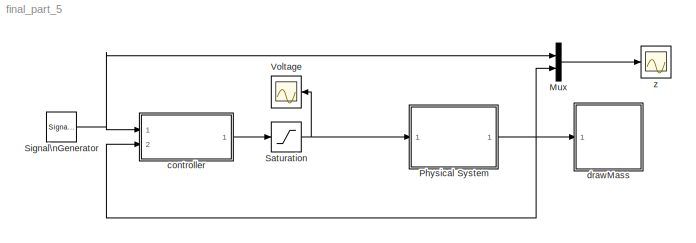
MODEL final_part_5
KIND model
BLOCK [Mux] Mux
  DisplayOption = bar
  Inputs = 2
  Ports = [2, 1]
  SID = 43
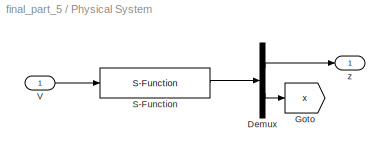
BLOCK [SubSystem] Physical System
  Ports = [1, 1]
  RequestExecContextInheritance = off
  SID = 73
BLOCK [Demux] Physical System/Demux
  DisplayOption = bar
  Outputs = [1;3]
  Ports = [1, 2]
  SID = 75
BLOCK [Goto] Physical System/Goto
  GotoTag = x
  SID = 86
  TagVisibility = global
BLOCK [S-Function] Physical System/S-Function
  EnableBusSupport = off
  FunctionName = mass_dynamics
  Parameters = P
  Ports = [1, 1]
  SID = 76
BLOCK [Inport] Physical System/V
  IconDisplay = Port number
  SID = 74
BLOCK [Outport] Physical System/z
  IconDisplay = Port number
  SID = 78
BLOCK [Saturate] Saturation
  InputPortMap = u0
  LowerLimit = -P.V_max
  Ports = [1, 1]
  SID = 44
  UpperLimit = P.V_max
BLOCK [SignalGenerator] Signal\nGenerator
  Amplitude = 0.5
  Frequency = .025
  Ports = [0, 1]
  SID = 45
  WaveForm = square
BLOCK [Scope] Voltage
  DataFormat = StructureWithTime
  Floating = off
  LimitDataPoints = off
  NumInputPorts = 1
  Ports = [1]
  SID = 60
  SampleTime = 0
  SaveName = ScopeData2
  ShowLegends = off
  TimeRange = 60
  YMax = -3
  YMin = -4
  ZoomMode = xonly
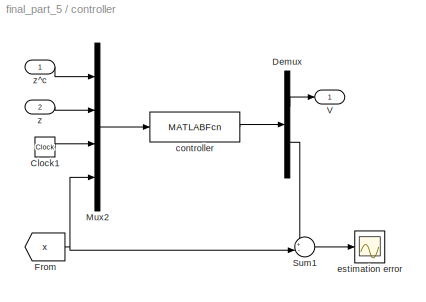
BLOCK [SubSystem] controller
  Ports = [2, 1]
  RequestExecContextInheritance = off
  SID = 46
BLOCK [Clock] controller/Clock1
  SID = 89
BLOCK [Demux] controller/Demux
  DisplayOption = bar
  Outputs = [1;3]
  Ports = [1, 2]
  SID = 90
BLOCK [From] controller/From
  GotoTag = x
  SID = 91
  TagVisibility = global
BLOCK [Mux] controller/Mux2
  DisplayOption = bar
  Ports = [4, 1]
  SID = 92
BLOCK [Sum] controller/Sum1
  IconShape = round
  InputSameDT = off
  Inputs = +-|
  OutDataTypeStr = Inherit: Inherit via internal rule
  Ports = [2, 1]
  SID = 93
  SaturateOnIntegerOverflow = off
BLOCK [Outport] controller/V
  IconDisplay = Port number
  SID = 52
BLOCK [MATLABFcn] controller/controller
  MATLABFcn = ctrl_est(u,P)
  OutputDimensions = 4
  Ports = [1, 1]
  SID = 51
  SampleTime = P.Ts
BLOCK [Scope] controller/estimation error
  DataFormat = StructureWithTime
  Floating = off
  LimitDataPoints = off
  NumInputPorts = 1
  Ports = [1]
  SID = 95
  SampleTime = 0
  SaveName = ScopeData1
  ShowLegends = off
  TimeRange = 60
  YMax = 0.004
  YMin = -0.004
BLOCK [Inport] controller/z
  IconDisplay = Port number
  Port = 2
  SID = 48
BLOCK [Inport] controller/z^c
  IconDisplay = Port number
  SID = 47
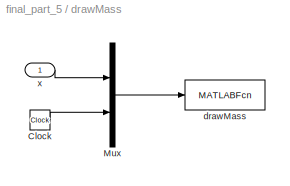
BLOCK [SubSystem] drawMass
  Ports = [1]
  RequestExecContextInheritance = off
  SID = 67
BLOCK [Clock] drawMass/Clock
  SID = 69
BLOCK [Mux] drawMass/Mux
  DisplayOption = bar
  Inputs = 2
  Ports = [2, 1]
  SID = 70
BLOCK [MATLABFcn] drawMass/drawMass
  MATLABFcn = drawMass(u,w,L,theta)
  OutputDimensions = 0
  Ports = [1]
  SID = 71
  SampleTime = 0.1
BLOCK [Inport] drawMass/x
  IconDisplay = Port number
  SID = 68
BLOCK [Scope] z
  DataFormat = StructureWithTime
  Floating = off
  LimitDataPoints = off
  NumInputPorts = 1
  Ports = [1]
  SID = 72
  SampleTime = 0
  ShowLegends = off
  TimeRange = 60
  YMax = 0.75
  YMin = -0.75
  ZoomMode = yonly
LINE Mux:1 -> z:1
LINE Physical System/Demux:1 -> Physical System/z:1
LINE Physical System/Demux:2 -> Physical System/Goto:1
LINE Physical System/S-Function:1 -> Physical System/Demux:1
LINE Physical System/V:1 -> Physical System/S-Function:1
NET Physical System:1 -> Mux:2, controller:2, drawMass:1
NET Saturation:1 -> Physical System:1, Voltage:1
NET Signal\nGenerator:1 -> Mux:1, controller:1
LINE controller/Clock1:1 -> controller/Mux2:3
LINE controller/Demux:1 -> controller/V:1
LINE controller/Demux:2 -> controller/Sum1:1
NET controller/From:1 -> controller/Mux2:4, controller/Sum1:2
LINE controller/Mux2:1 -> controller/controller:1
LINE controller/Sum1:1 -> controller/estimation error:1
LINE controller/controller:1 -> controller/Demux:1
LINE controller/z:1 -> controller/Mux2:2
LINE controller/z^c:1 -> controller/Mux2:1
LINE controller:1 -> Saturation:1
LINE drawMass/Clock:1 -> drawMass/Mux:2
LINE drawMass/Mux:1 -> drawMass/drawMass:1
LINE drawMass/x:1 -> drawMass/Mux:1
note: NET lines group one-source signal fan-out (src -> all destinations, sorted); 1:1 wires keep LINE
